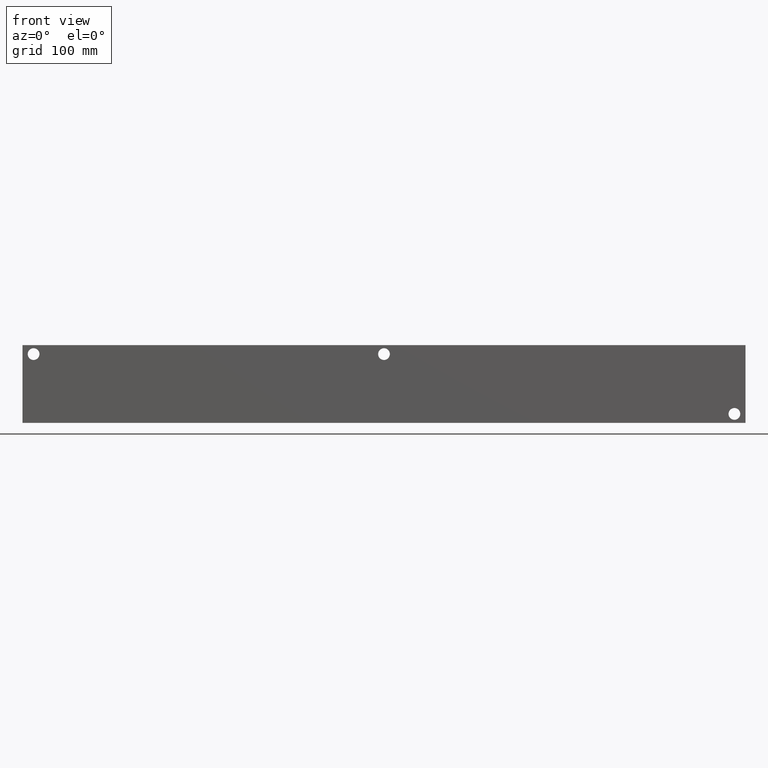
[diagram: clean part render]
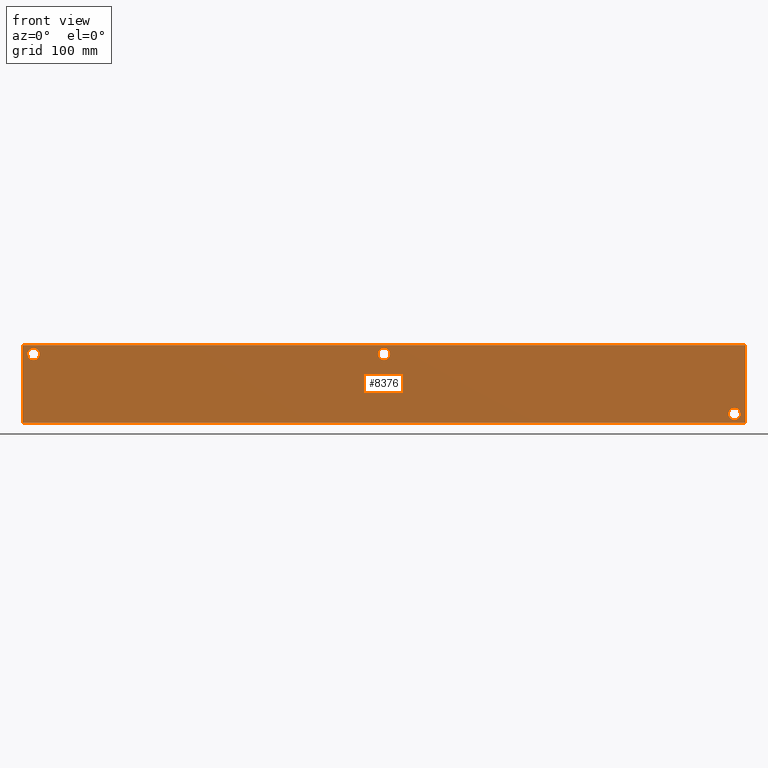
[diagram: same view with one face highlighted and labeled with its STEP entity id]
A machine part, front view. The second image highlights one B-rep face of the part: STEP entity #8376.
In plain terms, the highlighted planar face has unit normal (0, -1, 0).
Its self-contained STEP definition (entity closure, byte-faithful):
#150=CIRCLE('',#8610,6.7437);
#151=CIRCLE('',#8611,6.7437);
#153=CIRCLE('',#8619,6.7437);
#154=CIRCLE('',#8620,6.7437);
#156=CIRCLE('',#8628,6.7437);
#157=CIRCLE('',#8629,6.7437);
#390=FACE_BOUND('',#1684,.T.);
#391=FACE_BOUND('',#1685,.T.);
#392=FACE_BOUND('',#1686,.T.);
#1181=FACE_OUTER_BOUND('',#1683,.T.);
#1683=EDGE_LOOP('',(#7404,#7405,#7406,#7407));
#1684=EDGE_LOOP('',(#7408,#7409));
#1685=EDGE_LOOP('',(#7410,#7411));
#1686=EDGE_LOOP('',(#7412,#7413));
#1924=LINE('',#12987,#2646);
#2407=LINE('',#14676,#3129);
#2412=LINE('',#14685,#3134);
#2413=LINE('',#14687,#3135);
#2646=VECTOR('',#9263,10.);
#3129=VECTOR('',#10690,10.);
#3134=VECTOR('',#10699,10.);
#3135=VECTOR('',#10702,10.);
#3432=VERTEX_POINT('',#12985);
#3433=VERTEX_POINT('',#12986);
#3720=VERTEX_POINT('',#13946);
#3721=VERTEX_POINT('',#13947);
#3725=VERTEX_POINT('',#13962);
#3726=VERTEX_POINT('',#13963);
#3730=VERTEX_POINT('',#13978);
#3731=VERTEX_POINT('',#13979);
#3917=VERTEX_POINT('',#14674);
#3919=VERTEX_POINT('',#14683);
#4364=EDGE_CURVE('',#3432,#3433,#1924,.T.);
#4783=EDGE_CURVE('',#3720,#3721,#150,.T.);
#4784=EDGE_CURVE('',#3721,#3720,#151,.T.);
#4792=EDGE_CURVE('',#3725,#3726,#153,.T.);
#4793=EDGE_CURVE('',#3726,#3725,#154,.T.);
#4801=EDGE_CURVE('',#3730,#3731,#156,.T.);
#4802=EDGE_CURVE('',#3731,#3730,#157,.T.);
#5081=EDGE_CURVE('',#3917,#3432,#2407,.T.);
#5086=EDGE_CURVE('',#3919,#3433,#2412,.T.);
#5087=EDGE_CURVE('',#3917,#3919,#2413,.T.);
#7404=ORIENTED_EDGE('',*,*,#5087,.T.);
#7405=ORIENTED_EDGE('',*,*,#5086,.T.);
#7406=ORIENTED_EDGE('',*,*,#4364,.F.);
#7407=ORIENTED_EDGE('',*,*,#5081,.F.);
#7408=ORIENTED_EDGE('',*,*,#4783,.T.);
#7409=ORIENTED_EDGE('',*,*,#4784,.T.);
#7410=ORIENTED_EDGE('',*,*,#4792,.T.);
#7411=ORIENTED_EDGE('',*,*,#4793,.T.);
#7412=ORIENTED_EDGE('',*,*,#4801,.T.);
#7413=ORIENTED_EDGE('',*,*,#4802,.T.);
#7641=PLANE('',#8920);
#8376=ADVANCED_FACE('',(#1181,#390,#391,#392),#7641,.T.);
#8610=AXIS2_PLACEMENT_3D('',#13948,#9972,#9973);
#8611=AXIS2_PLACEMENT_3D('',#13949,#9974,#9975);
#8619=AXIS2_PLACEMENT_3D('',#13964,#9992,#9993);
#8620=AXIS2_PLACEMENT_3D('',#13965,#9994,#9995);
#8628=AXIS2_PLACEMENT_3D('',#13980,#10012,#10013);
#8629=AXIS2_PLACEMENT_3D('',#13981,#10014,#10015);
#8920=AXIS2_PLACEMENT_3D('',#14686,#10700,#10701);
#9263=DIRECTION('',(1.,0.,0.));
#9972=DIRECTION('center_axis',(0.,1.,0.));
#9973=DIRECTION('ref_axis',(1.,0.,0.));
#9974=DIRECTION('center_axis',(0.,1.,0.));
#9975=DIRECTION('ref_axis',(1.,0.,0.));
#9992=DIRECTION('center_axis',(0.,1.,0.));
#9993=DIRECTION('ref_axis',(1.,0.,0.));
#9994=DIRECTION('center_axis',(0.,1.,0.));
#9995=DIRECTION('ref_axis',(1.,0.,0.));
#10012=DIRECTION('center_axis',(0.,1.,0.));
#10013=DIRECTION('ref_axis',(1.,0.,0.));
#10014=DIRECTION('center_axis',(0.,1.,0.));
#10015=DIRECTION('ref_axis',(1.,0.,0.));
#10690=DIRECTION('',(0.,0.,1.));
#10699=DIRECTION('',(0.,0.,1.));
#10700=DIRECTION('center_axis',(0.,-1.,0.));
#10701=DIRECTION('ref_axis',(1.,0.,0.));
#10702=DIRECTION('',(1.,0.,0.));
#12985=CARTESIAN_POINT('',(0.,0.,88.9));
#12986=CARTESIAN_POINT('',(825.5,0.,88.9));
#12987=CARTESIAN_POINT('',(0.,0.,88.9));
#13946=CARTESIAN_POINT('',(419.4937,0.,78.5876));
#13947=CARTESIAN_POINT('',(406.0063,0.,78.5876));
#13948=CARTESIAN_POINT('Origin',(412.75,0.,78.5876));
#13949=CARTESIAN_POINT('Origin',(412.75,0.,78.5876));
#13962=CARTESIAN_POINT('',(19.4437,0.,78.5876));
#13963=CARTESIAN_POINT('',(5.9563,0.,78.5876));
#13964=CARTESIAN_POINT('Origin',(12.7,0.,78.5876));
#13965=CARTESIAN_POINT('Origin',(12.7,0.,78.5876));
#13978=CARTESIAN_POINT('',(819.5437,0.,10.3124));
#13979=CARTESIAN_POINT('',(806.0563,0.,10.3124));
#13980=CARTESIAN_POINT('Origin',(812.8,0.,10.3124));
#13981=CARTESIAN_POINT('Origin',(812.8,0.,10.3124));
#14674=CARTESIAN_POINT('',(0.,0.,0.));
#14676=CARTESIAN_POINT('',(0.,0.,0.));
#14683=CARTESIAN_POINT('',(825.5,0.,0.));
#14685=CARTESIAN_POINT('',(825.5,0.,0.));
#14686=CARTESIAN_POINT('Origin',(0.,0.,0.));
#14687=CARTESIAN_POINT('',(0.,0.,0.));